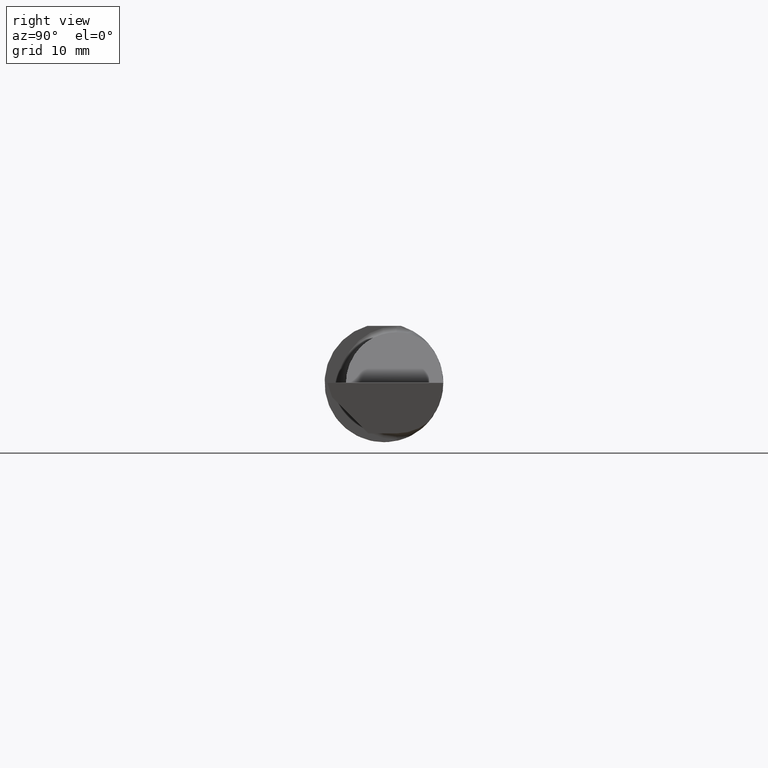
[diagram: clean part render]
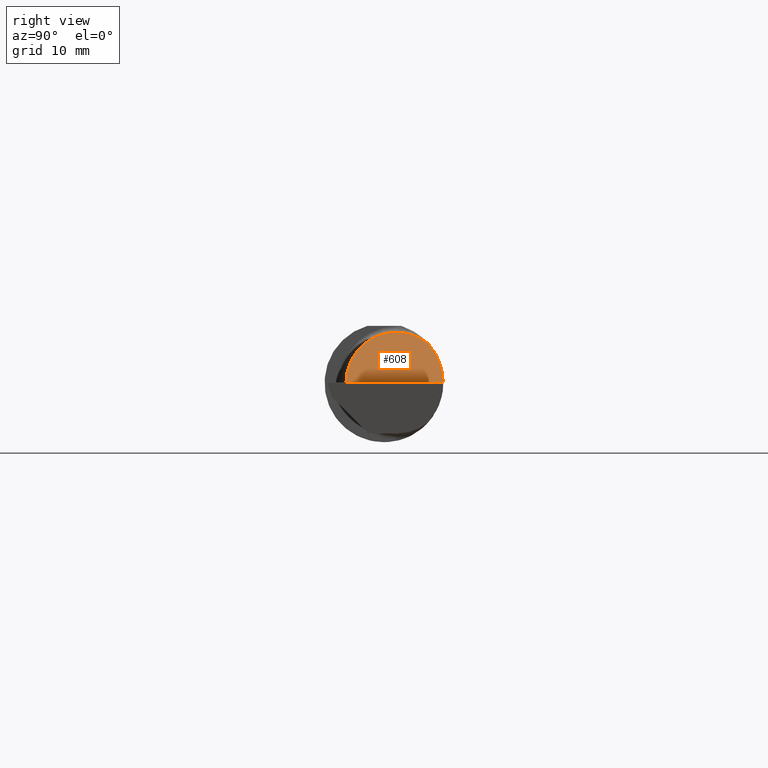
[diagram: same view with one face highlighted and labeled with its STEP entity id]
A machine part, right view. The second image highlights one B-rep face of the part: STEP entity #608.
In plain terms, the highlighted planar face has unit normal (-0.7071, 0, -0.7071).
Its self-contained STEP definition (entity closure, byte-faithful):
#9 = CARTESIAN_POINT ( 'NONE',  ( 2.344079160038592846, 0.1868028301886826281, 0.1659208399614056639 ) ) ;
#18 = AXIS2_PLACEMENT_3D ( 'NONE', #208, #438, #625 ) ;
#23 = FACE_OUTER_BOUND ( 'NONE', #340, .T. ) ;
#47 = EDGE_CURVE ( 'NONE', #267, #62, #600, .T. ) ;
#54 = CARTESIAN_POINT ( 'NONE',  ( 2.296849999999997838, 0.05299999999999998462, 0.2131500000000000616 ) ) ;
#62 = VERTEX_POINT ( 'NONE', #325 ) ;
#74 = CARTESIAN_POINT ( 'NONE',  ( 2.296849999999997838, -0.07186037918017462722, 0.2131500000000000339 ) ) ;
#94 = EDGE_CURVE ( 'NONE', #653, #267, #466, .T. ) ;
#144 = CARTESIAN_POINT ( 'NONE',  ( 2.510000000000000231, -0.1601500000000002089, 4.274017329024261857E-16 ) ) ;
#156 = CARTESIAN_POINT ( 'NONE',  ( 2.448145753305726480, 0.2498499999999998500, 0.06185424669427373734 ) ) ;
#195 = ORIENTED_EDGE ( 'NONE', *, *, #47, .T. ) ;
#208 = CARTESIAN_POINT ( 'NONE',  ( 2.510000000000000231, -0.2500000000000000555, 4.274017329024261857E-16 ) ) ;
#219 = CARTESIAN_POINT ( 'NONE',  ( 2.510000000000000231, -0.1601500000000002089, 4.274017329024261857E-16 ) ) ;
#259 =( BOUNDED_CURVE ( )  B_SPLINE_CURVE ( 3, ( #9, #359, #641, #54 ),
 .UNSPECIFIED., .F., .T. ) 
 B_SPLINE_CURVE_WITH_KNOTS ( ( 4, 4 ),
 ( 5.604538515477326399, 6.283185307179586232 ),
 .UNSPECIFIED. ) 
 CURVE ( )  GEOMETRIC_REPRESENTATION_ITEM ( )  RATIONAL_B_SPLINE_CURVE ( ( 1.000000000000000000, 0.9619867256453000781, 0.9619867256453000781, 1.000000000000000000 ) ) 
 REPRESENTATION_ITEM ( '' )  );
#267 = VERTEX_POINT ( 'NONE', #219 ) ;
#274 = CARTESIAN_POINT ( 'NONE',  ( 2.344079160038592846, 0.1868028301886826281, 0.1659208399614056639 ) ) ;
#325 = CARTESIAN_POINT ( 'NONE',  ( 2.510000000000000231, 0.2498499999999998222, 4.274017329024261857E-16 ) ) ;
#340 = EDGE_LOOP ( 'NONE', ( #627, #443, #592, #195 ) ) ;
#359 = CARTESIAN_POINT ( 'NONE',  ( 2.313215146136123224, 0.1485302233682088413, 0.1967848538638747313 ) ) ;
#392 = EDGE_CURVE ( 'NONE', #683, #653, #259, .T. ) ;
#421 =( BOUNDED_CURVE ( )  B_SPLINE_CURVE ( 3, ( #681, #684, #156, #637 ),
 .UNSPECIFIED., .F., .T. ) 
 B_SPLINE_CURVE_WITH_KNOTS ( ( 4, 4 ),
 ( 0.8445312661600321569, 1.570796326794894560 ),
 .UNSPECIFIED. ) 
 CURVE ( )  GEOMETRIC_REPRESENTATION_ITEM ( )  RATIONAL_B_SPLINE_CURVE ( ( 1.000000000000000000, 0.9565258159411019756, 0.9565258159411019756, 1.000000000000000000 ) ) 
 REPRESENTATION_ITEM ( '' )  );
#438 = DIRECTION ( 'NONE',  ( -0.7071067811865429098, 0.000000000000000000, -0.7071067811865521247 ) ) ;
#439 = CARTESIAN_POINT ( 'NONE',  ( 2.296849999999997838, 0.05299999999999998462, 0.2131500000000000616 ) ) ;
#443 = ORIENTED_EDGE ( 'NONE', *, *, #392, .T. ) ;
#466 =( BOUNDED_CURVE ( )  B_SPLINE_CURVE ( 3, ( #439, #74, #730, #144 ),
 .UNSPECIFIED., .F., .T. ) 
 B_SPLINE_CURVE_WITH_KNOTS ( ( 4, 4 ),
 ( 0.000000000000000000, 1.570796326794894560 ),
 .UNSPECIFIED. ) 
 CURVE ( )  GEOMETRIC_REPRESENTATION_ITEM ( )  RATIONAL_B_SPLINE_CURVE ( ( 1.000000000000000000, 0.8047378541243654926, 0.8047378541243654926, 1.000000000000000000 ) ) 
 REPRESENTATION_ITEM ( '' )  );
#498 = CARTESIAN_POINT ( 'NONE',  ( 2.510000000000000231, -0.2500000000000000555, 4.274017329024261857E-16 ) ) ;
#515 = CARTESIAN_POINT ( 'NONE',  ( 2.296849999999997838, 0.05299999999999998462, 0.2131500000000000616 ) ) ;
#592 = ORIENTED_EDGE ( 'NONE', *, *, #94, .T. ) ;
#600 = LINE ( 'NONE', #498, #668 ) ;
#608 = ADVANCED_FACE ( 'NONE', ( #23 ), #729, .F. ) ;
#625 = DIRECTION ( 'NONE',  ( -0.7071067811865520136, 0.000000000000000000, 0.7071067811865427988 ) ) ;
#627 = ORIENTED_EDGE ( 'NONE', *, *, #746, .F. ) ;
#637 = CARTESIAN_POINT ( 'NONE',  ( 2.510000000000000231, 0.2498499999999998222, 4.274017329024261857E-16 ) ) ;
#641 = CARTESIAN_POINT ( 'NONE',  ( 2.296849999999997838, 0.1021668565906585502, 0.2131500000000000616 ) ) ;
#653 = VERTEX_POINT ( 'NONE', #515 ) ;
#668 = VECTOR ( 'NONE', #674, 39.37007874015748143 ) ;
#674 = DIRECTION ( 'NONE',  ( -0.000000000000000000, 1.000000000000000000, -0.000000000000000000 ) ) ;
#681 = CARTESIAN_POINT ( 'NONE',  ( 2.344079160038592846, 0.1868028301886826281, 0.1659208399614056639 ) ) ;
#683 = VERTEX_POINT ( 'NONE', #274 ) ;
#684 = CARTESIAN_POINT ( 'NONE',  ( 2.390325100969869165, 0.2278791102234783705, 0.1196748990301299276 ) ) ;
#729 = PLANE ( 'NONE',  #18 ) ;
#730 = CARTESIAN_POINT ( 'NONE',  ( 2.385139620819824113, -0.1601499999999997648, 0.1248603791801750629 ) ) ;
#746 = EDGE_CURVE ( 'NONE', #683, #62, #421, .T. ) ;